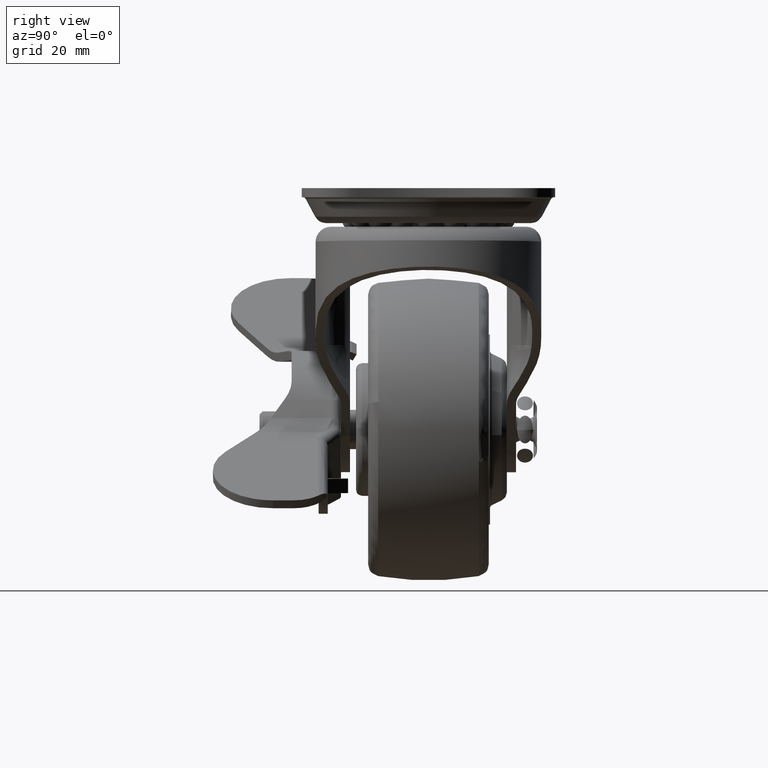
[diagram: clean part render]
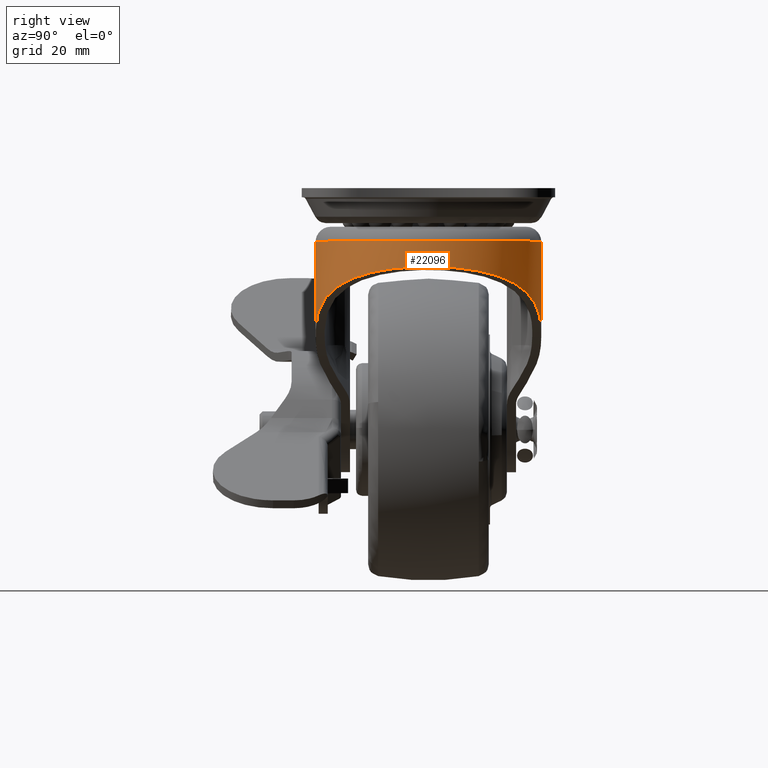
[diagram: same view with one face highlighted and labeled with its STEP entity id]
A machine part, right view. The second image highlights one B-rep face of the part: STEP entity #22096.
In plain terms, the highlighted face is a freeform B-spline surface patch.
Its self-contained STEP definition (entity closure, byte-faithful):
#17207=CARTESIAN_POINT('',(-0.275269216217142,-18.697970741044848,-7.396043407507680));
#17208=VERTEX_POINT('',#17207);
#17221=CARTESIAN_POINT('',(-0.275269216217156,18.697970741044848,-7.396043407507680));
#17222=VERTEX_POINT('',#17221);
#17223=CARTESIAN_POINT('',(-0.275269216217156,18.697970741044848,-7.396043407507680));
#17224=CARTESIAN_POINT('',(18.227969486086625,18.426586408728898,-7.131433621908654));
#17225=CARTESIAN_POINT('',(18.227969486086621,5.836028E-013,-7.131433621908652));
#17226=CARTESIAN_POINT('',(18.227969486086625,-18.426586408727761,-7.131433621908654));
#17227=CARTESIAN_POINT('',(-0.275269216217141,-18.697970741044831,-7.396043407507682));
#17235=(BOUNDED_CURVE()B_SPLINE_CURVE(2,(#17223,#17224,#17225,#17226,#17227),.UNSPECIFIED.,.F.,.U.)B_SPLINE_CURVE_WITH_KNOTS((3,2,3),(0.0,0.500000000000000,1.0),.UNSPECIFIED.)CURVE()GEOMETRIC_REPRESENTATION_ITEM()RATIONAL_B_SPLINE_CURVE((1.0,0.712294836426529,1.0,0.712294836426529,1.0))REPRESENTATION_ITEM(''));
#17236=EDGE_CURVE('',#17222,#17208,#17235,.T.);
#17315=CARTESIAN_POINT('',(-0.275127299483243,18.697975439256801,-7.399998800000060));
#17316=VERTEX_POINT('',#17315);
#17317=CARTESIAN_POINT('',(-0.275127299483243,18.697975439256801,-7.399998800000060));
#17318=CARTESIAN_POINT('',(-0.275269216217156,18.697970741044848,-7.396043407507680));
#17319=QUASI_UNIFORM_CURVE('',1,(#17317,#17318),.UNSPECIFIED.,.F.,.U.);
#17320=EDGE_CURVE('',#17316,#17222,#17319,.T.);
#17351=CARTESIAN_POINT('',(-0.275127299483247,-18.697975439256801,-7.399998799999970));
#17352=VERTEX_POINT('',#17351);
#17364=CARTESIAN_POINT('',(-0.275269216217142,-18.697970741044848,-7.396043407507680));
#17365=CARTESIAN_POINT('',(-0.275127299483247,-18.697975439256801,-7.399998799999970));
#17366=QUASI_UNIFORM_CURVE('',1,(#17364,#17365),.UNSPECIFIED.,.F.,.U.);
#17367=EDGE_CURVE('',#17208,#17352,#17366,.T.);
#19050=CARTESIAN_POINT('',(1.032760468355816,18.699998960319299,-22.065399863626350));
#19051=VERTEX_POINT('',#19050);
#19059=CARTESIAN_POINT('',(1.032760468355830,-18.699999999999999,-22.065399863626350));
#19060=VERTEX_POINT('',#19059);
#19061=CARTESIAN_POINT('',(1.032760468355830,-18.699999999999999,-22.065399863626350));
#19062=CARTESIAN_POINT('',(1.520907934495877,-18.700000000000010,-21.630990892924061));
#19063=CARTESIAN_POINT('',(2.013758235243814,-18.677333197629899,-21.207982525837210));
#19064=CARTESIAN_POINT('',(3.008111613092597,-18.584489434892951,-20.384312921297649));
#19065=CARTESIAN_POINT('',(3.509616055885362,-18.514318726138139,-19.983651963476358));
#19066=CARTESIAN_POINT('',(4.520450215292177,-18.323369627863212,-19.204344671643572));
#19067=CARTESIAN_POINT('',(5.029781905482574,-18.202601845346390,-18.825698370290009));
#19068=CARTESIAN_POINT('',(5.798933574888892,-17.980290815895160,-18.274077326064340));
#19069=CARTESIAN_POINT('',(6.056175325840048,-17.899317108909418,-18.092929280447670));
#19070=CARTESIAN_POINT('',(6.443221915479422,-17.767042458655592,-17.825283664834739));
#19071=CARTESIAN_POINT('',(6.572434667058899,-17.721147735938839,-17.736747927457571));
#19072=CARTESIAN_POINT('',(6.831236064891770,-17.625656346575958,-17.561034115079671));
#19073=CARTESIAN_POINT('',(6.960645507478317,-17.576120666341421,-17.473979915490020));
#19074=CARTESIAN_POINT('',(7.604964115095054,-17.320466069687502,-17.044469562740741));
#19075=CARTESIAN_POINT('',(8.114226700842520,-17.089535531808782,-16.717560293740611));
#19076=CARTESIAN_POINT('',(9.118472612968347,-16.573852926760761,-16.094979917815831));
#19077=CARTESIAN_POINT('',(9.613460325190948,-16.289106573409150,-15.799310335395919));
#19078=CARTESIAN_POINT('',(10.586841874664151,-15.663721596587500,-15.237433706608339));
#19079=CARTESIAN_POINT('',(11.065242649467390,-15.323094197700360,-14.971226824257480));
#19080=CARTESIAN_POINT('',(11.768219294700620,-14.767696260681641,-14.592946263653291));
#19081=CARTESIAN_POINT('',(12.000102179961420,-14.575142872092471,-14.470360443569151));
#19082=CARTESIAN_POINT('',(12.343931719943161,-14.274743509622080,-14.291635694692260));
#19083=CARTESIAN_POINT('',(12.458038825920241,-14.172525536273479,-14.232837461084539));
#19084=CARTESIAN_POINT('',(12.683486323677091,-13.965429664001840,-14.117641197682380));
#19085=CARTESIAN_POINT('',(12.794946727764030,-13.860454490500780,-14.061179246505439));
#19086=CARTESIAN_POINT('',(13.345906312175311,-13.328486732316479,-13.784376054735390));
#19087=CARTESIAN_POINT('',(13.766415735369760,-12.880263616305269,-13.580513416813190));
#19088=CARTESIAN_POINT('',(14.565668127914041,-11.938927892597169,-13.204170950837460));
#19089=CARTESIAN_POINT('',(14.944416872010700,-11.445818427909870,-13.031695031624929));
#19090=CARTESIAN_POINT('',(15.479503449150901,-10.671904490071929,-12.794420027340500));
#19091=CARTESIAN_POINT('',(15.652350934468471,-10.408215363875989,-12.718908684931140));
#19092=CARTESIAN_POINT('',(15.903047336135600,-10.003937840091909,-12.610813491025750));
#19093=CARTESIAN_POINT('',(15.985183000626160,-9.867720664903379,-12.575644175798971));
#19094=CARTESIAN_POINT('',(16.146535670132010,-9.592333598266375,-12.507002718859759));
#19095=CARTESIAN_POINT('',(16.225809177043100,-9.453061192194481,-12.473506871776840));
#19096=CARTESIAN_POINT('',(16.614109108991460,-8.750311941084481,-12.310465720526389));
#19097=CARTESIAN_POINT('',(16.895018847739252,-8.175014738262982,-12.195834031170399));
#19098=CARTESIAN_POINT('',(17.398265290667879,-6.999110952962148,-11.994270733288930));
#19099=CARTESIAN_POINT('',(17.620601567236900,-6.398503115558529,-11.907346739756880));
#19100=CARTESIAN_POINT('',(18.005889140674999,-5.172025867663780,-11.758821450679120));
#19101=CARTESIAN_POINT('',(18.168849190564451,-4.546159654745744,-11.697220065139581));
#19102=CARTESIAN_POINT('',(18.333799810043889,-3.747533745224908,-11.635423193098919));
#19103=CARTESIAN_POINT('',(18.364873214874429,-3.586820086126409,-11.623818054075020));
#19104=CARTESIAN_POINT('',(18.422754024744648,-3.265626879508029,-11.602252734945360));
#19105=CARTESIAN_POINT('',(18.449606736485030,-3.104949793430909,-11.592275512091840));
#19106=CARTESIAN_POINT('',(18.523964290017130,-2.622679903240476,-11.564703540631710));
#19107=CARTESIAN_POINT('',(18.565272682375898,-2.300848647505279,-11.549465215117561));
#19108=CARTESIAN_POINT('',(18.664753323095500,-1.334416670512236,-11.512849359779000));
#19109=CARTESIAN_POINT('',(18.698543064242930,-0.688880437778401,-11.500522501808611));
#19110=CARTESIAN_POINT('',(18.701361119518658,0.604671589331054,-11.499491546576060));
#19111=CARTESIAN_POINT('',(18.670393319825610,1.252687222527659,-11.510785042605621));
#19112=CARTESIAN_POINT('',(18.574067278638381,2.226624069886880,-11.546223377163150));
#19113=CARTESIAN_POINT('',(18.533479081679680,2.552335240256382,-11.561187997364611));
#19114=CARTESIAN_POINT('',(18.436489866642191,3.196973352172068,-11.597129189610060));
#19115=CARTESIAN_POINT('',(18.380052557986900,3.516654292435660,-11.618119000099680));
#19116=CARTESIAN_POINT('',(18.187428285688860,4.467923828917733,-11.690219379989371));
#19117=CARTESIAN_POINT('',(18.027985954367630,5.091760668300132,-11.750416060477070));
#19118=CARTESIAN_POINT('',(17.648327815701961,6.318951448854636,-11.896559623682290));
#19119=CARTESIAN_POINT('',(17.428110153884841,6.922305348139904,-11.982502098390080));
#19120=CARTESIAN_POINT('',(17.114516570910769,7.663388937938509,-12.107886519898830));
#19121=CARTESIAN_POINT('',(17.049877348917430,7.810948495988104,-12.133865124668461));
#19122=CARTESIAN_POINT('',(16.916731456291568,8.104738568109497,-12.187688756572721));
#19123=CARTESIAN_POINT('',(16.848121719419812,8.251174019260947,-12.215576211489701));
#19124=CARTESIAN_POINT('',(16.637600182343061,8.686111977914919,-12.301667404639661));
#19125=CARTESIAN_POINT('',(16.490817575746760,8.970709958143022,-12.362369477094630));
#19126=CARTESIAN_POINT('',(16.031828613239998,9.808772943518878,-12.554726278412010));
#19127=CARTESIAN_POINT('',(15.701022565773719,10.346544920471370,-12.696599043532570));
#19128=CARTESIAN_POINT('',(14.992195560477780,11.381084114820069,-13.010149685633960));
#19129=CARTESIAN_POINT('',(14.614167809704970,11.877847721164329,-13.181824276857631));
#19130=CARTESIAN_POINT('',(14.012570285561530,12.591999584924420,-13.464402712780251));
#19131=CARTESIAN_POINT('',(13.806269314968921,12.824875772644839,-13.562782033186521));
#19132=CARTESIAN_POINT('',(13.488192902435580,13.166318535652140,-13.717056620507400));
#19133=CARTESIAN_POINT('',(13.381015724379100,13.278507976200361,-13.769461738726410));
#19134=CARTESIAN_POINT('',(13.164983837102220,13.499090819616869,-13.875982732801390));
#19135=CARTESIAN_POINT('',(13.056040812132240,13.607579303769860,-13.930141393226320));
#19136=CARTESIAN_POINT('',(12.506832440901150,14.141143195290731,-14.205490465071570));
#19137=CARTESIAN_POINT('',(12.053121637934820,14.539640880366539,-14.440327691988310));
#19138=CARTESIAN_POINT('',(11.120058925643701,15.282431021815951,-14.941112435252331));
#19139=CARTESIAN_POINT('',(10.640699431060529,15.626714422679299,-15.207059072333269));
#19140=CARTESIAN_POINT('',(9.904151626879164,16.103368946809461,-15.631205467694191));
#19141=CARTESIAN_POINT('',(9.655712580451757,16.255616042986599,-15.776796227592770));
#19142=CARTESIAN_POINT('',(9.278845514438284,16.474062477945139,-16.001772728486650));
#19143=CARTESIAN_POINT('',(9.152352962079371,16.545313205504119,-16.077966869983470));
#19144=CARTESIAN_POINT('',(8.899117169401706,16.683897904377869,-16.231914459049040));
#19145=CARTESIAN_POINT('',(8.772328220082132,16.751264790564282,-16.309693062910050));
#19146=CARTESIAN_POINT('',(8.137621971969404,17.078682300194640,-16.702632536048391));
#19147=CARTESIAN_POINT('',(7.627437650450331,17.310543236199329,-17.029924958913419));
#19148=CARTESIAN_POINT('',(6.604325579474098,17.718455475713711,-17.711092388980969));
#19149=CARTESIAN_POINT('',(6.091393193638604,17.894494389165541,-18.064967377935421));
#19150=CARTESIAN_POINT('',(5.321230042650469,18.118931464359481,-18.616390820648160));
#19151=CARTESIAN_POINT('',(5.064379178691349,18.187131071585529,-18.803635337068020));
#19152=CARTESIAN_POINT('',(4.679052290689406,18.279717684642510,-19.089755833785208));
#19153=CARTESIAN_POINT('',(4.550601451524890,18.308960603592809,-19.186005056131961));
#19154=CARTESIAN_POINT('',(4.293705477583994,18.364236641044290,-19.380272665264311));
#19155=CARTESIAN_POINT('',(4.165184652273564,18.390281853839969,-19.478350654530381));
#19156=CARTESIAN_POINT('',(3.524805887578060,18.512159174114970,-19.971536484804421));
#19157=CARTESIAN_POINT('',(3.018127951329499,18.583350050525048,-20.376144080609969));
#19158=CARTESIAN_POINT('',(2.016519771323498,18.677274845112990,-21.205568477846938));
#19159=CARTESIAN_POINT('',(1.521588504867131,18.699998960319299,-21.630385244231849));
#19160=CARTESIAN_POINT('',(1.032760468355816,18.699998960319299,-22.065399863626350));
#19161=B_SPLINE_CURVE_WITH_KNOTS('',3,(#19061,#19062,#19063,#19064,#19065,#19066,#19067,#19068,#19069,#19070,#19071,#19072,#19073,#19074,#19075,#19076,#19077,#19078,#19079,#19080,#19081,#19082,#19083,#19084,#19085,#19086,#19087,#19088,#19089,#19090,#19091,#19092,#19093,#19094,#19095,#19096,#19097,#19098,#19099,#19100,#19101,#19102,#19103,#19104,#19105,#19106,#19107,#19108,#19109,#19110,#19111,#19112,#19113,#19114,#19115,#19116,#19117,#19118,#19119,#19120,#19121,#19122,#19123,#19124,#19125,#19126,#19127,#19128,#19129,#19130,#19131,#19132,#19133,#19134,#19135,#19136,#19137,#19138,#19139,#19140,#19141,#19142,#19143,#19144,#19145,#19146,#19147,#19148,#19149,#19150,#19151,#19152,#19153,#19154,#19155,#19156,#19157,#19158,#19159,#19160),.UNSPECIFIED.,.F.,.U.,(4,2,2,2,2,2,2,2,2,2,2,2,2,2,2,2,2,2,2,2,2,2,2,2,2,2,2,2,2,2,2,2,2,2,2,2,2,2,2,2,2,2,2,2,2,2,2,2,2,4),(0.0,0.031250000000000,0.062500000000001,0.093750000000001,0.109375000000001,0.117187500000001,0.125000000000001,0.156250000000001,0.187500000000002,0.218750000000002,0.234375000000002,0.242187500000002,0.250000000000002,0.281250000000001,0.312500000000001,0.328125000000001,0.335937500000001,0.343750000000001,0.375000000000002,0.406250000000002,0.437500000000002,0.445312500000002,0.453125000000002,0.468750000000002,0.500000000000002,0.531250000000002,0.546875000000003,0.562500000000003,0.593750000000003,0.625000000000003,0.632812500000003,0.640625000000003,0.656250000000003,0.687500000000003,0.718750000000003,0.734375000000003,0.742187500000003,0.750000000000003,0.781250000000003,0.812500000000002,0.828125000000002,0.835937500000002,0.843750000000002,0.875000000000002,0.906250000000002,0.921875000000002,0.929687500000002,0.937500000000002,0.968750000000001,1.0),.UNSPECIFIED.);
#19162=EDGE_CURVE('',#19060,#19051,#19161,.T.);
#22032=CARTESIAN_POINT('',(0.585630488801316,18.693590937718490,-22.483980135296459));
#22033=CARTESIAN_POINT('',(-1.076297533943541,18.693590937718490,-7.103071650953057));
#22034=CARTESIAN_POINT('',(20.170568839099904,19.209425694158529,-20.367800983640773));
#22035=CARTESIAN_POINT('',(18.508640816355040,19.209425694158529,-4.986892499297366));
#22036=CARTESIAN_POINT('',(19.657719179521660,-0.489508906141518,-20.423215084932369));
#22037=CARTESIAN_POINT('',(17.995791156776811,-0.489508906141517,-5.042306600588965));
#22038=CARTESIAN_POINT('',(19.144869519943423,-20.188443506441569,-20.478629186223959));
#22039=CARTESIAN_POINT('',(17.482941497198578,-20.188443506441569,-5.097720701880564));
#22040=CARTESIAN_POINT('',(-0.386387875669365,-18.642353104333779,-22.589008037918781));
#22041=CARTESIAN_POINT('',(-2.048315898414220,-18.642353104333779,-7.208099553575377));
#22049=(BOUNDED_SURFACE()B_SPLINE_SURFACE(1,2,((#22032,#22034,#22036,#22038,#22040),(#22033,#22035,#22037,#22039,#22041)),.UNSPECIFIED.,.F.,.F.,.U.)B_SPLINE_SURFACE_WITH_KNOTS((2,2),(3,2,3),(0.0,15.470434724225809),(0.0,32.136614379591009,64.273228759182018),.UNSPECIFIED.)GEOMETRIC_REPRESENTATION_ITEM()RATIONAL_B_SPLINE_SURFACE(((1.0,0.688354575693754,1.0,0.688354575693754,1.0),(1.0,0.688354575693754,1.0,0.688354575693754,1.0)))REPRESENTATION_ITEM('')SURFACE());
#22050=ORIENTED_EDGE('',*,*,#17236,.T.);
#22051=ORIENTED_EDGE('',*,*,#17367,.T.);
#22052=CARTESIAN_POINT('',(-5.204170E-015,-18.699998960319299,-12.507347990962760));
#22053=VERTEX_POINT('',#22052);
#22054=CARTESIAN_POINT('',(-5.204170E-015,-18.699998960319299,-12.507347990962760));
#22055=CARTESIAN_POINT('',(-0.137571094916257,-18.699999480159651,-9.953535186344363));
#22056=CARTESIAN_POINT('',(-0.275127299483247,-18.697975439256801,-7.399998799999970));
#22064=(BOUNDED_CURVE()B_SPLINE_CURVE(2,(#22054,#22055,#22056),.UNSPECIFIED.,.F.,.U.)CURVE()GEOMETRIC_REPRESENTATION_ITEM()QUASI_UNIFORM_CURVE()RATIONAL_B_SPLINE_CURVE((1.0,0.999972940260017,1.0))REPRESENTATION_ITEM(''));
#22065=EDGE_CURVE('',#22053,#17352,#22064,.T.);
#22066=ORIENTED_EDGE('',*,*,#22065,.F.);
#22067=CARTESIAN_POINT('',(1.032760468355830,-18.699999999999999,-22.065399863626350));
#22068=CARTESIAN_POINT('',(-5.204170E-015,-18.699998960319299,-12.507347990962760));
#22069=QUASI_UNIFORM_CURVE('',1,(#22067,#22068),.UNSPECIFIED.,.F.,.U.);
#22070=EDGE_CURVE('',#19060,#22053,#22069,.T.);
#22071=ORIENTED_EDGE('',*,*,#22070,.F.);
#22072=ORIENTED_EDGE('',*,*,#19162,.T.);
#22073=CARTESIAN_POINT('',(-9.540979E-015,18.699998960319299,-12.507347990962760));
#22074=VERTEX_POINT('',#22073);
#22075=CARTESIAN_POINT('',(1.032760468355816,18.699998960319299,-22.065399863626350));
#22076=CARTESIAN_POINT('',(-9.540979E-015,18.699998960319299,-12.507347990962760));
#22077=QUASI_UNIFORM_CURVE('',1,(#22075,#22076),.UNSPECIFIED.,.F.,.U.);
#22078=EDGE_CURVE('',#19051,#22074,#22077,.T.);
#22079=ORIENTED_EDGE('',*,*,#22078,.T.);
#22080=CARTESIAN_POINT('',(-0.275127299483243,18.697975439256801,-7.399998800000060));
#22081=CARTESIAN_POINT('',(-0.137571094916088,18.699999480159647,-9.953535186347505));
#22082=CARTESIAN_POINT('',(-9.540979E-015,18.699998960319299,-12.507347990962760));
#22090=(BOUNDED_CURVE()B_SPLINE_CURVE(2,(#22080,#22081,#22082),.UNSPECIFIED.,.F.,.U.)CURVE()GEOMETRIC_REPRESENTATION_ITEM()QUASI_UNIFORM_CURVE()RATIONAL_B_SPLINE_CURVE((1.0,0.999972940260263,1.0))REPRESENTATION_ITEM(''));
#22091=EDGE_CURVE('',#17316,#22074,#22090,.T.);
#22092=ORIENTED_EDGE('',*,*,#22091,.F.);
#22093=ORIENTED_EDGE('',*,*,#17320,.T.);
#22094=EDGE_LOOP('',(#22050,#22051,#22066,#22071,#22072,#22079,#22092,#22093));
#22095=FACE_OUTER_BOUND('',#22094,.T.);
#22096=ADVANCED_FACE('',(#22095),#22049,.T.);